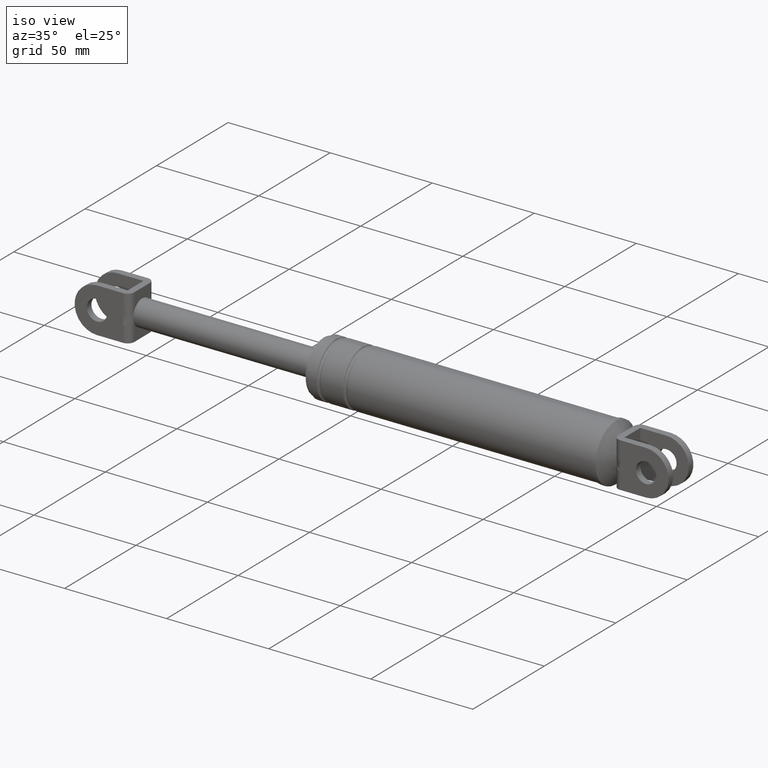
[diagram: clean part render]
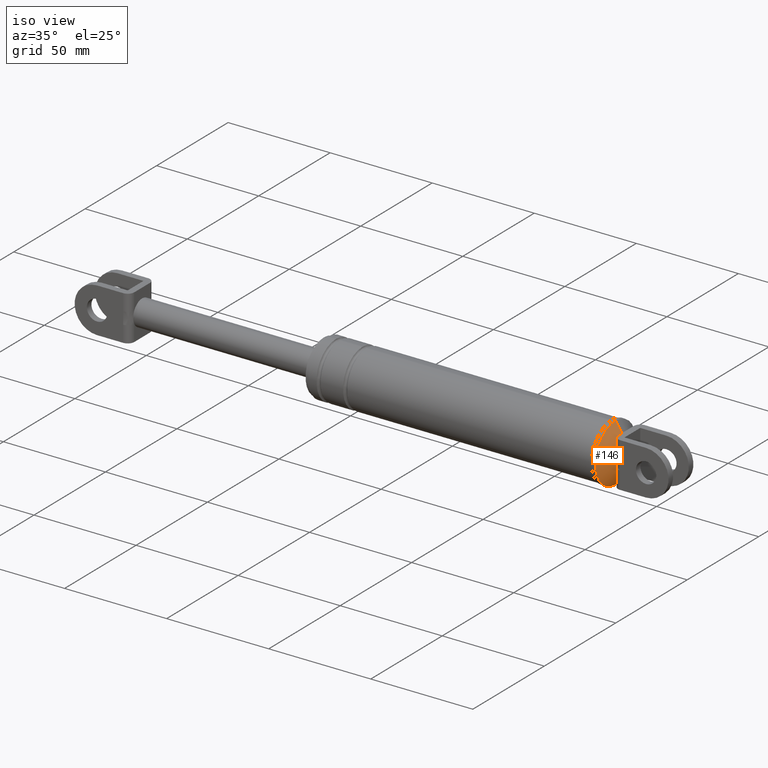
[diagram: same view with one face highlighted and labeled with its STEP entity id]
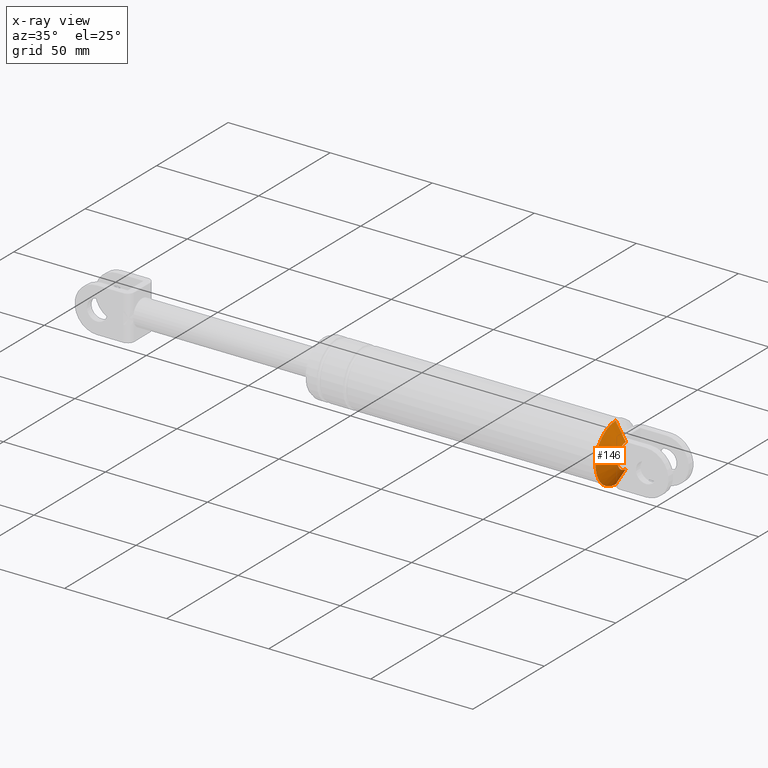
[diagram: x-ray of the same camera — body ghosted, the highlighted face saturated]
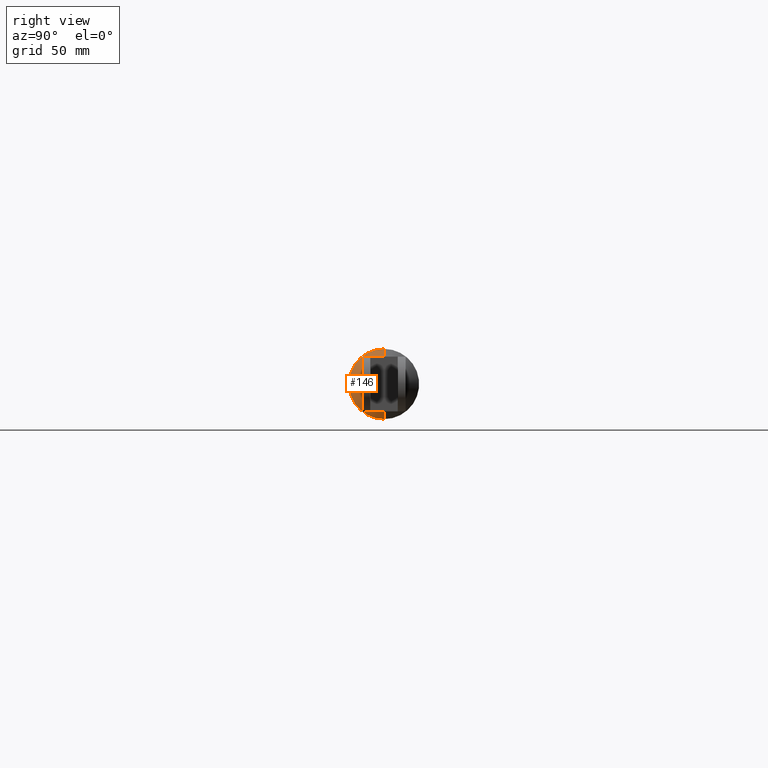
[diagram: same view with one face highlighted and labeled with its STEP entity id]
A machine part, iso view. The second image highlights one B-rep face of the part: STEP entity #146.
The next image is the same camera in x-ray: the body ghosted, the highlighted face saturated — about 0% of this face is hidden behind the body in this view.
A second angle (right view) of the same face is appended — the face is thin or edge-on in the first view.
In plain terms, the highlighted face is a freeform B-spline surface patch.
Its self-contained STEP definition (entity closure, byte-faithful):
#146=ADVANCED_FACE('',(#523),#522,.T.);
#522=( BOUNDED_SURFACE() B_SPLINE_SURFACE( 2,1,((#1178,#1179),(#1180,#1181),(#1182,#1183),(#1184,#1185),(#1186,#1187)), .UNSPECIFIED.,.F.,.F.,.F.) B_SPLINE_SURFACE_WITH_KNOTS((3,2,3),(2,2),(0.00000000000E+000,5.00000000000E-001,1.00000000000E+000),(0.00000000000E+000,1.00000000000E+000), .UNSPECIFIED. ) GEOMETRIC_REPRESENTATION_ITEM() RATIONAL_B_SPLINE_SURFACE(((1.00000000000E+000,1.00000000000E+000),(7.07106781187E-001,7.07106781187E-001),(1.00000000000E+000,1.00000000000E+000),(7.07106781187E-001,7.07106781187E-001),(1.00000000000E+000,1.00000000000E+000))) REPRESENTATION_ITEM('') SURFACE() );
#523=FACE_OUTER_BOUND('',#1188,.T.);
#1178=CARTESIAN_POINT('',(3.38659667665E+002,0.00000000000E+000,1.88436951829E+002));
#1179=CARTESIAN_POINT('',(3.26350771844E+002,-4.88399215717E-015,1.68496540599E+002));
#1180=CARTESIAN_POINT('',(3.38659667665E+002,0.00000000000E+000,1.88436951829E+002));
#1181=CARTESIAN_POINT('',(3.26350771844E+002,-1.99404112295E+001,1.68496540599E+002));
#1182=CARTESIAN_POINT('',(3.38659667665E+002,0.00000000000E+000,1.88436951829E+002));
#1183=CARTESIAN_POINT('',(3.26350771844E+002,-1.99404112295E+001,1.88436951829E+002));
#1184=CARTESIAN_POINT('',(3.38659667665E+002,0.00000000000E+000,1.88436951829E+002));
#1185=CARTESIAN_POINT('',(3.26350771844E+002,-1.99404112295E+001,2.08377363058E+002));
#1186=CARTESIAN_POINT('',(3.38659667665E+002,0.00000000000E+000,1.88436951829E+002));
#1187=CARTESIAN_POINT('',(3.26350771844E+002,2.44199607858E-015,2.08377363058E+002));
#1188=EDGE_LOOP('',(#1556,#1557,#1558,#1559,#1560,#1561));
#1556=ORIENTED_EDGE('',*,*,#1795,.F.);
#1557=ORIENTED_EDGE('',*,*,#1796,.F.);
#1558=ORIENTED_EDGE('',*,*,#1723,.T.);
#1559=ORIENTED_EDGE('',*,*,#1715,.T.);
#1560=ORIENTED_EDGE('',*,*,#1731,.T.);
#1561=ORIENTED_EDGE('',*,*,#1797,.T.);
#1715=EDGE_CURVE('',#1892,#1907,#1914,.T.);
#1723=EDGE_CURVE('',#1968,#1892,#1969,.T.);
#1731=EDGE_CURVE('',#1907,#2015,#2022,.T.);
#1795=EDGE_CURVE('',#2425,#2424,#2444,.T.);
#1796=EDGE_CURVE('',#1968,#2425,#2450,.T.);
#1797=EDGE_CURVE('',#2015,#2424,#2456,.T.);
#1892=VERTEX_POINT('',#2924);
#1907=VERTEX_POINT('',#2941);
#1914=CIRCLE('',#2949,6.00000000000E+000);
#1968=VERTEX_POINT('',#2980);
#1969=CIRCLE('',#2984,6.00000000000E+000);
#2015=VERTEX_POINT('',#3008);
#2022=CIRCLE('',#3016,6.00000000000E+000);
#2424=VERTEX_POINT('',#3268);
#2425=VERTEX_POINT('',#3269);
#2444=CIRCLE('',#3281,1.41000000000E+001);
#2450=(BOUNDED_CURVE() B_SPLINE_CURVE(1,(#3282,#3283),.UNSPECIFIED.,.F.,.F.) B_SPLINE_CURVE_WITH_KNOTS((2,2),(3.00896503032E-001,7.07106781040E-001),.UNSPECIFIED.) CURVE() GEOMETRIC_REPRESENTATION_ITEM() RATIONAL_B_SPLINE_CURVE((1.00000000000E+000,1.00000000000E+000)) REPRESENTATION_ITEM('') );
#2456=(BOUNDED_CURVE() B_SPLINE_CURVE(1,(#3284,#3285),.UNSPECIFIED.,.F.,.F.) B_SPLINE_CURVE_WITH_KNOTS((2,2),(3.00896479910E-001,7.07106774282E-001),.UNSPECIFIED.) CURVE() GEOMETRIC_REPRESENTATION_ITEM() RATIONAL_B_SPLINE_CURVE((7.50000000000E-001,7.50000000000E-001)) REPRESENTATION_ITEM('') );
#2924=CARTESIAN_POINT('',(3.34955963961E+002,-5.49999700000E+000,1.86039029186E+002));
#2941=CARTESIAN_POINT('',(3.34955963961E+002,-5.49999700000E+000,1.90834874471E+002));
#2946=CARTESIAN_POINT('',(3.34955963961E+002,0.00000000000E+000,1.88436951829E+002));
#2947=DIRECTION('',(-1.00000000000E+000,0.00000000000E+000,0.00000000000E+000));
#2948=DIRECTION('',(-0.00000000000E+000,-0.00000000000E+000,-1.00000000000E+000));
#2949=AXIS2_PLACEMENT_3D('',#2946,#2947,#2948);
#2980=CARTESIAN_POINT('',(3.34955963961E+002,-1.08179303497E-010,1.82436951829E+002));
#2981=CARTESIAN_POINT('',(3.34955963961E+002,0.00000000000E+000,1.88436951829E+002));
#2982=DIRECTION('',(-1.00000000000E+000,0.00000000000E+000,0.00000000000E+000));
#2983=DIRECTION('',(-0.00000000000E+000,9.16666166667E-001,-3.99653773770E-001));
#2984=AXIS2_PLACEMENT_3D('',#2981,#2982,#2983);
#3008=CARTESIAN_POINT('',(3.34955963961E+002,2.39649990294E-007,1.94436951829E+002));
#3013=CARTESIAN_POINT('',(3.34955963961E+002,0.00000000000E+000,1.88436951829E+002));
#3014=DIRECTION('',(-1.00000000000E+000,0.00000000000E+000,0.00000000000E+000));
#3015=DIRECTION('',(-0.00000000000E+000,-0.00000000000E+000,-1.00000000000E+000));
#3016=AXIS2_PLACEMENT_3D('',#3013,#3014,#3015);
#3268=CARTESIAN_POINT('',(3.29955963961E+002,0.00000000000E+000,2.02536951829E+002));
#3269=CARTESIAN_POINT('',(3.29955963961E+002,5.92118946467E-016,1.74336951829E+002));
#3278=CARTESIAN_POINT('',(3.29955963961E+002,0.00000000000E+000,1.88436951829E+002));
#3279=DIRECTION('',(-1.00000000000E+000,0.00000000000E+000,0.00000000000E+000));
#3280=DIRECTION('',(0.00000000000E+000,-1.22460635382E-016,1.00000000000E+000));
#3281=AXIS2_PLACEMENT_3D('',#3278,#3279,#3280);
#3282=CARTESIAN_POINT('',(3.34955963956E+002,-1.46957616093E-015,1.82436951821E+002));
#3283=CARTESIAN_POINT('',(3.29955963963E+002,-3.45350397288E-015,1.74336951832E+002));
#3284=CARTESIAN_POINT('',(3.34955964241E+002,1.78166506680E-015,1.94436951376E+002));
#3285=CARTESIAN_POINT('',(3.29955964046E+002,4.18691318227E-015,2.02536951691E+002));